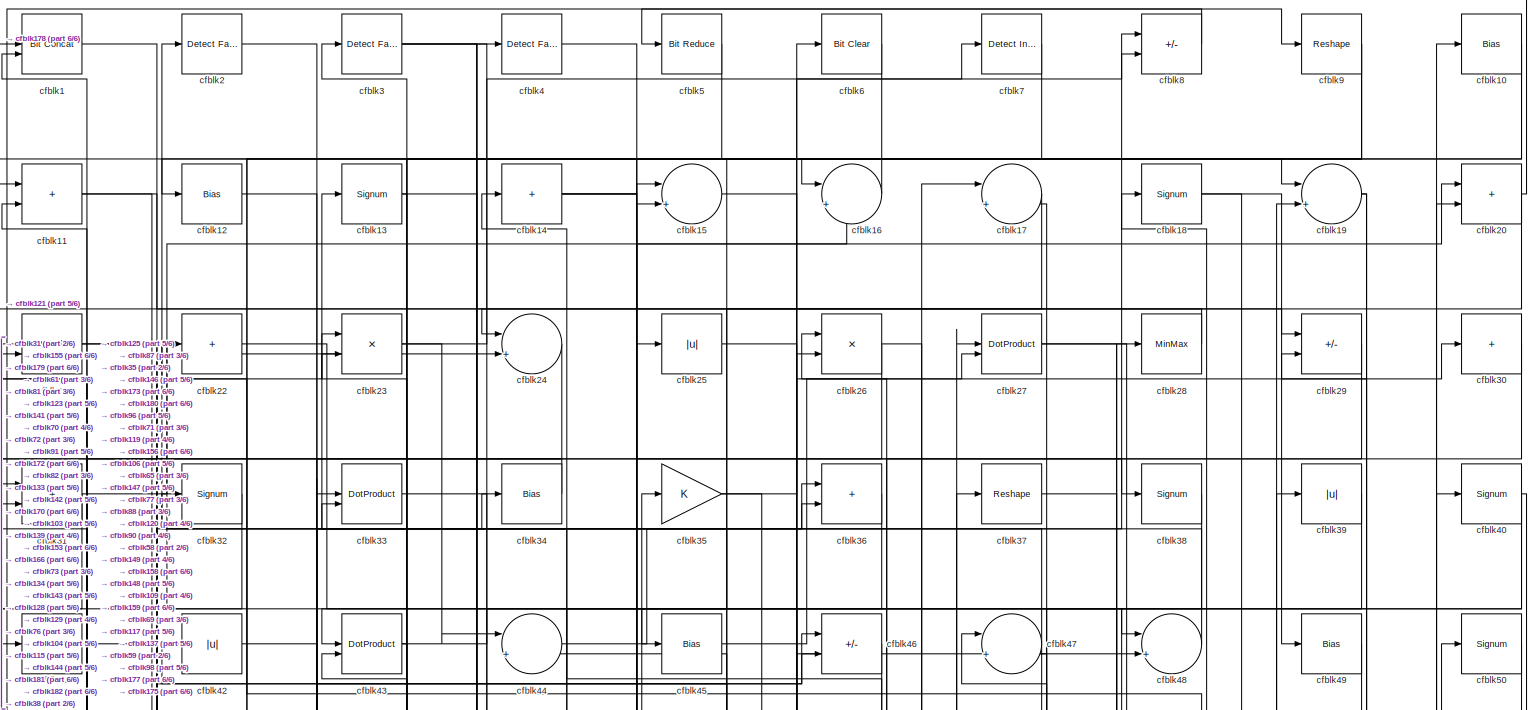
[diagram: root canvas - part 1/6, full width, top band]
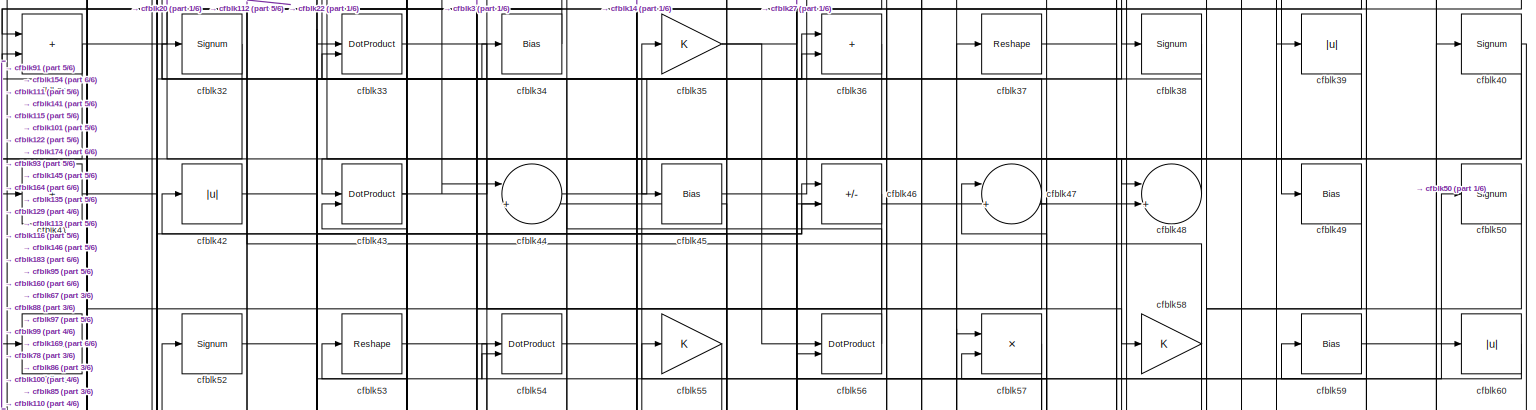
[diagram: root canvas - part 2/6, full width, top band]
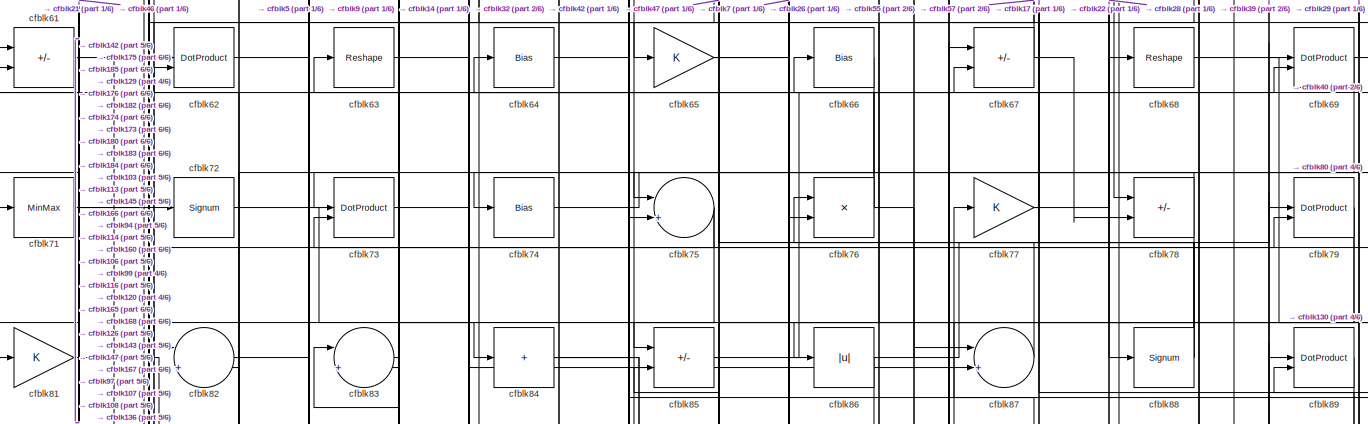
[diagram: root canvas - part 3/6, full width, middle band]
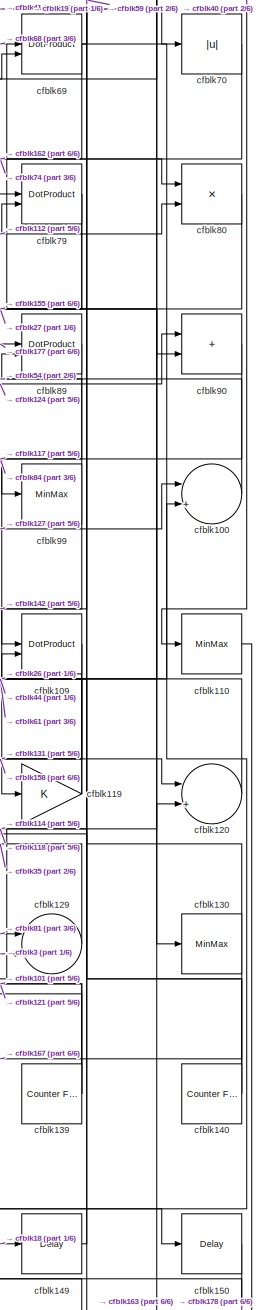
[diagram: root canvas - part 4/6, middle right region]
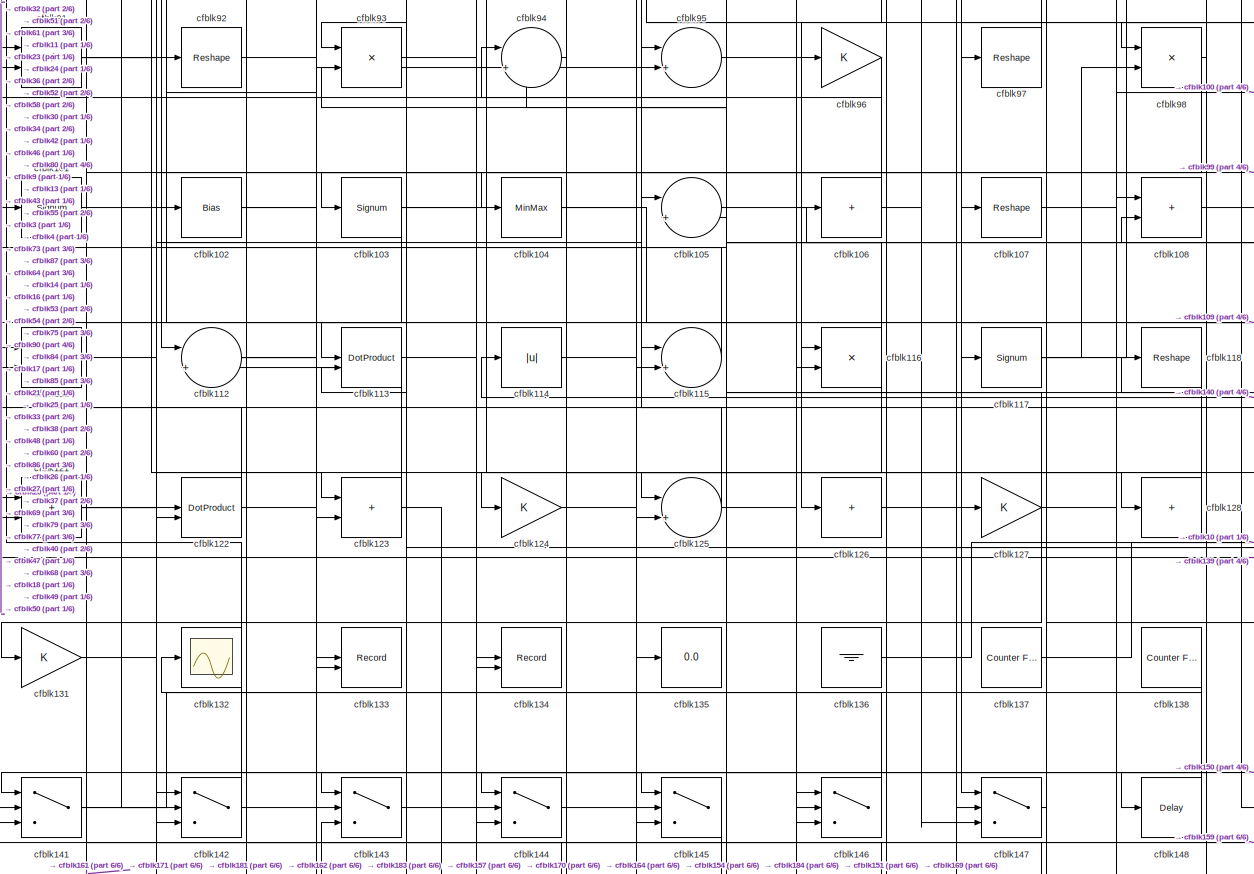
[diagram: root canvas - part 5/6, full width, middle band]
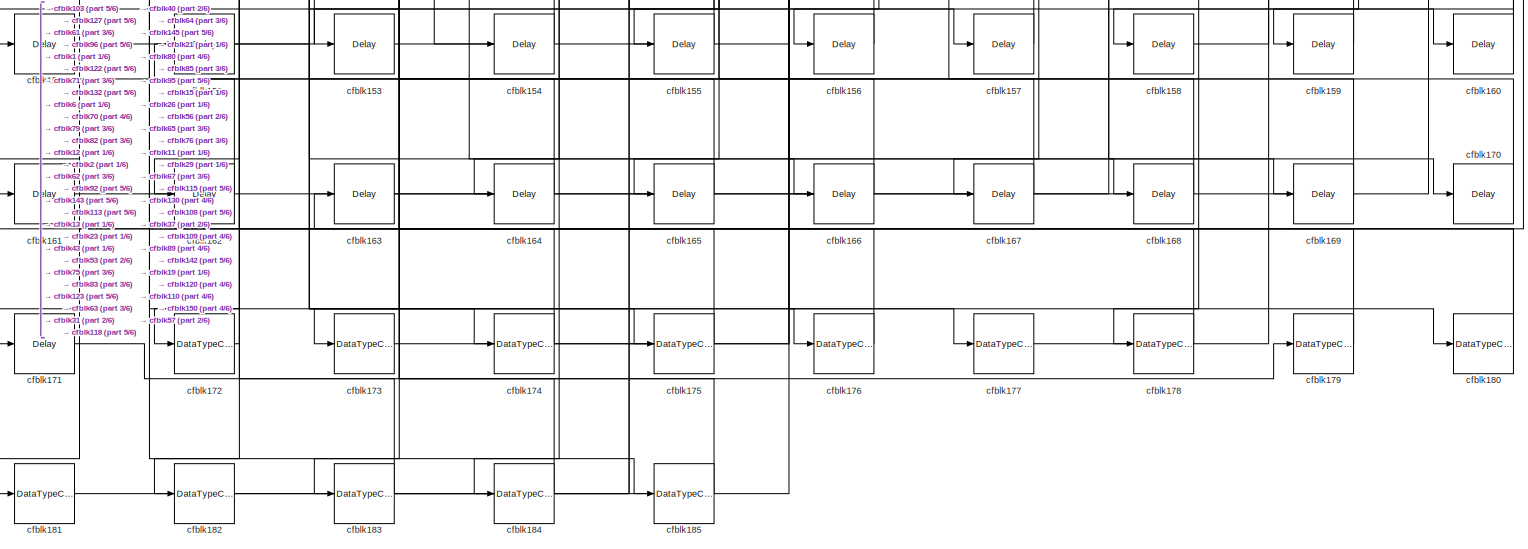
[diagram: root canvas - part 6/6, full width, bottom band]
MODEL slx_259ef8273e37
KIND model
CONFIG AbsTol = auto
CONFIG EnableMultiTasking = off
CONFIG FixedStep = auto
CONFIG MaxStep = auto
CONFIG MinStep = auto
CONFIG RelTol = 1e-3
CONFIG SampleTimeConstraint = Unconstrained
CONFIG SolverName = VariableStepAuto
CONFIG StartTime = 0.0
CONFIG StopTime = 10.0
BLOCK [Reference] cfblk1  REF=hdlsllib/Logic and Bit
Operations/Bit Concat
  SourceBlock = hdlsllib/Logic and Bit\nOperations/Bit Concat
  SourceType = Bit Concat
BLOCK [Bias] cfblk10
  Bias = 0.0
  SaturateOnIntegerOverflow = off
BLOCK [Sum] cfblk100
  Inputs = |++
BLOCK [Signum] cfblk101
BLOCK [Bias] cfblk102
  Bias = 0.0
  SaturateOnIntegerOverflow = off
BLOCK [Signum] cfblk103
BLOCK [MinMax] cfblk104
BLOCK [Sum] cfblk105
  Inputs = |++
BLOCK [Sum] cfblk106
  IconShape = rectangular
  Inputs = +
BLOCK [Reshape] cfblk107
BLOCK [Sum] cfblk108
  IconShape = rectangular
BLOCK [DotProduct] cfblk109
  OutDataTypeStr = Inherit: Inherit via internal rule
BLOCK [Sum] cfblk11
  IconShape = rectangular
BLOCK [MinMax] cfblk110
BLOCK [Product] cfblk111
  Inputs = */
  RndMeth = Zero
  SaturateOnIntegerOverflow = on
BLOCK [Sum] cfblk112
  Inputs = |++
BLOCK [DotProduct] cfblk113
  OutDataTypeStr = Inherit: Inherit via internal rule
BLOCK [Abs] cfblk114
  SaturateOnIntegerOverflow = off
BLOCK [Sum] cfblk115
  Inputs = |++
BLOCK [Product] cfblk116
  Inputs = */
  RndMeth = Zero
  SaturateOnIntegerOverflow = on
BLOCK [Signum] cfblk117
BLOCK [Reshape] cfblk118
BLOCK [Gain] cfblk119
BLOCK [Bias] cfblk12
  Bias = 0.0
  SaturateOnIntegerOverflow = off
BLOCK [Sum] cfblk120
  Inputs = |++
BLOCK [Sum] cfblk121
  IconShape = rectangular
BLOCK [DotProduct] cfblk122
  OutDataTypeStr = Inherit: Inherit via internal rule
BLOCK [Sum] cfblk123
  IconShape = rectangular
BLOCK [Gain] cfblk124
BLOCK [Sum] cfblk125
  Inputs = |++
BLOCK [Sum] cfblk126
  IconShape = rectangular
  Inputs = +
BLOCK [Gain] cfblk127
BLOCK [Sum] cfblk128
  IconShape = rectangular
  Inputs = +
BLOCK [Sum] cfblk129
  Inputs = |++
BLOCK [Signum] cfblk13
BLOCK [MinMax] cfblk130
BLOCK [Gain] cfblk131
BLOCK [Scope] cfblk132
  Floating = off
  NumInputPorts = 1
  ScopeSpecificationString = Simulink.scopes.TimeScopeBlockCfg('CurrentConfiguration', extmgr.ConfigurationSet(extmgr.Configuration('Core','General UI',true),extmgr.Configuration('Core','Source UI',true),extmgr.Configuration('Sources','WiredSimulink',true,'DataLoggingVariableName','ScopeData2','DataLoggingSaveFormat','Array','DataLoggingLimitDataPoints',true,'DataLoggingDecimation','1'),extmgr.Configuration('Visuals','Time Do...<+868ch>
BLOCK [Record] cfblk133
  CompatibilityTag = XY
  FileSettingsInternal = {"entries":[{"content":{"excelSettings":{"content":{},"type":"Streamout.ExcelSettings"}},"type":"Streamout.FileSettingStorage","uuid":""}],"packageUris":["http:\/\/schema.mathworks.com\/mf0\/streamout_blocks\/R2020a"],"version":"1.0"}
  Layout = [1 1]
  SignalsInternal = {"entries":[{"content":{"signals":[{"content":{"blockPath":[],"dimensions":[1],"domain":"","lineColor":"#a2142f","plots":[1],"port":1,"signalID":1850,"signalName":"XY Graph:1"},"type":"RecordBlkView.Signal","uuid":""},{"content":{"blockPath":[],"dimensions":[1],"domain":"","lineColor":"#139fff","plots":[1],"port":2,"signalID":1853,"signalName":"XY Graph:2"},"type":"RecordBlkView.Signal","uuid":""}...<+146ch>
  VisualizationBindings = {"xyplotplugin":{"info":[{"series":[{"bindingParametersList":[{"parameter":"X-Axis","signalID":1850,"signalName":"XY Graph:1"},{"parameter":"Y-Axis","signalID":1853,"signalName":"XY Graph:2"}],"seriesID":15361}],"subplotID":1}]}}
  st = -1
BLOCK [Record] cfblk134
  CompatibilityTag = XY
  FileSettingsInternal = {"entries":[{"content":{"excelSettings":{"content":{},"type":"Streamout.ExcelSettings"}},"type":"Streamout.FileSettingStorage","uuid":""}],"packageUris":["http:\/\/schema.mathworks.com\/mf0\/streamout_blocks\/R2020a"],"version":"1.0"}
  Layout = [1 1]
  SignalsInternal = {"entries":[{"content":{"signals":[{"content":{"blockPath":[],"dimensions":[1],"domain":"","lineColor":"#a2142f","plots":[1],"port":1,"signalID":1858,"signalName":"XY Graph:1"},"type":"RecordBlkView.Signal","uuid":""},{"content":{"blockPath":[],"dimensions":[1],"domain":"","lineColor":"#139fff","plots":[1],"port":2,"signalID":1861,"signalName":"XY Graph:2"},"type":"RecordBlkView.Signal","uuid":""}...<+146ch>
  VisualizationBindings = {"xyplotplugin":{"info":[{"series":[{"bindingParametersList":[{"parameter":"X-Axis","signalID":1858,"signalName":"XY Graph:1"},{"parameter":"Y-Axis","signalID":1861,"signalName":"XY Graph:2"}],"seriesID":19335}],"subplotID":1}]}}
  st = -1
BLOCK [Display] cfblk135
  Decimation = 1
BLOCK [Ground] cfblk136
BLOCK [Reference] cfblk137  REF=hdlsllib/Sources/Counter
Free-Running
  SourceBlock = hdlsllib/Sources/Counter\nFree-Running
  SourceType = Counter Free-Running
BLOCK [Reference] cfblk138  REF=hdlsllib/Sources/Counter
Free-Running
  SourceBlock = hdlsllib/Sources/Counter\nFree-Running
  SourceType = Counter Free-Running
BLOCK [Reference] cfblk139  REF=hdlsllib/Sources/Counter
Free-Running
  SourceBlock = hdlsllib/Sources/Counter\nFree-Running
  SourceType = Counter Free-Running
BLOCK [Sum] cfblk14
  IconShape = rectangular
  Inputs = +
BLOCK [Reference] cfblk140  REF=hdlsllib/Sources/Counter
Free-Running
  SourceBlock = hdlsllib/Sources/Counter\nFree-Running
  SourceType = Counter Free-Running
BLOCK [Switch] cfblk141
  InputSameDT = off
  SaturateOnIntegerOverflow = off
BLOCK [Switch] cfblk142
  InputSameDT = off
  SaturateOnIntegerOverflow = off
BLOCK [Switch] cfblk143
  InputSameDT = off
  SaturateOnIntegerOverflow = off
BLOCK [Switch] cfblk144
  InputSameDT = off
  SaturateOnIntegerOverflow = off
BLOCK [Switch] cfblk145
  InputSameDT = off
  SaturateOnIntegerOverflow = off
BLOCK [Switch] cfblk146
  InputSameDT = off
  SaturateOnIntegerOverflow = off
BLOCK [Switch] cfblk147
  InputSameDT = off
  SaturateOnIntegerOverflow = off
BLOCK [Delay] cfblk148
  InputPortMap = u0
  SampleTime = 1
BLOCK [Delay] cfblk149
  InputPortMap = u0
  SampleTime = 1
BLOCK [Sum] cfblk15
  Inputs = |++
BLOCK [Delay] cfblk150
  InputPortMap = u0
  SampleTime = 1
BLOCK [Delay] cfblk151
  InputPortMap = u0
  SampleTime = 1
BLOCK [Delay] cfblk152
  InputPortMap = u0
  SampleTime = 1
BLOCK [Delay] cfblk153
  InputPortMap = u0
  SampleTime = 1
BLOCK [Delay] cfblk154
  InputPortMap = u0
  SampleTime = 1
BLOCK [Delay] cfblk155
  InputPortMap = u0
  SampleTime = 1
BLOCK [Delay] cfblk156
  InputPortMap = u0
  SampleTime = 1
BLOCK [Delay] cfblk157
  InputPortMap = u0
  SampleTime = 1
BLOCK [Delay] cfblk158
  InputPortMap = u0
  SampleTime = 1
BLOCK [Delay] cfblk159
  InputPortMap = u0
  SampleTime = 1
BLOCK [Sum] cfblk16
  Inputs = |++
BLOCK [Delay] cfblk160
  InputPortMap = u0
  SampleTime = 1
BLOCK [Delay] cfblk161
  InputPortMap = u0
  SampleTime = 1
BLOCK [Delay] cfblk162
  InputPortMap = u0
  SampleTime = 1
BLOCK [Delay] cfblk163
  InputPortMap = u0
  SampleTime = 1
BLOCK [Delay] cfblk164
  InputPortMap = u0
  SampleTime = 1
BLOCK [Delay] cfblk165
  InputPortMap = u0
  SampleTime = 1
BLOCK [Delay] cfblk166
  InputPortMap = u0
  SampleTime = 1
BLOCK [Delay] cfblk167
  InputPortMap = u0
  SampleTime = 1
BLOCK [Delay] cfblk168
  InputPortMap = u0
  SampleTime = 1
BLOCK [Delay] cfblk169
  InputPortMap = u0
  SampleTime = 1
BLOCK [Sum] cfblk17
  Inputs = |++
BLOCK [Delay] cfblk170
  InputPortMap = u0
  SampleTime = 1
BLOCK [Delay] cfblk171
  InputPortMap = u0
  SampleTime = 1
BLOCK [DataTypeConversion] cfblk172
  OutDataTypeStr = uint8
  RndMeth = Floor
  SaturateOnIntegerOverflow = off
BLOCK [DataTypeConversion] cfblk173
  OutDataTypeStr = uint8
  RndMeth = Floor
  SaturateOnIntegerOverflow = off
BLOCK [DataTypeConversion] cfblk174
  RndMeth = Floor
  SaturateOnIntegerOverflow = off
BLOCK [DataTypeConversion] cfblk175
  OutDataTypeStr = uint8
  RndMeth = Floor
  SaturateOnIntegerOverflow = off
BLOCK [DataTypeConversion] cfblk176
  OutDataTypeStr = uint8
  RndMeth = Floor
  SaturateOnIntegerOverflow = off
BLOCK [DataTypeConversion] cfblk177
  OutDataTypeStr = uint8
  RndMeth = Floor
  SaturateOnIntegerOverflow = off
BLOCK [DataTypeConversion] cfblk178
  OutDataTypeStr = uint8
  RndMeth = Floor
  SaturateOnIntegerOverflow = off
BLOCK [DataTypeConversion] cfblk179
  OutDataTypeStr = uint8
  RndMeth = Floor
  SaturateOnIntegerOverflow = off
BLOCK [Signum] cfblk18
BLOCK [DataTypeConversion] cfblk180
  RndMeth = Floor
  SaturateOnIntegerOverflow = off
BLOCK [DataTypeConversion] cfblk181
  OutDataTypeStr = uint8
  RndMeth = Floor
  SaturateOnIntegerOverflow = off
BLOCK [DataTypeConversion] cfblk182
  OutDataTypeStr = uint8
  RndMeth = Floor
  SaturateOnIntegerOverflow = off
BLOCK [DataTypeConversion] cfblk183
  RndMeth = Floor
  SaturateOnIntegerOverflow = off
BLOCK [DataTypeConversion] cfblk184
  OutDataTypeStr = uint8
  RndMeth = Floor
  SaturateOnIntegerOverflow = off
BLOCK [DataTypeConversion] cfblk185
  OutDataTypeStr = uint8
  RndMeth = Floor
  SaturateOnIntegerOverflow = off
BLOCK [Sum] cfblk19
  Inputs = |++
BLOCK [Reference] cfblk2  REF=hdlsllib/Logic and Bit
Operations/Detect Fall
Nonpositive
  SourceBlock = hdlsllib/Logic and Bit\nOperations/Detect Fall\nNonpositive
  SourceType = Detect Fall Nonpositive
BLOCK [Sum] cfblk20
  IconShape = rectangular
BLOCK [DotProduct] cfblk21
  OutDataTypeStr = Inherit: Inherit via internal rule
BLOCK [Sum] cfblk22
  IconShape = rectangular
  Inputs = +
BLOCK [Product] cfblk23
  Inputs = */
  RndMeth = Zero
  SaturateOnIntegerOverflow = on
BLOCK [Sum] cfblk24
  Inputs = |++
BLOCK [Abs] cfblk25
  SaturateOnIntegerOverflow = off
BLOCK [Product] cfblk26
  Inputs = */
  RndMeth = Zero
  SaturateOnIntegerOverflow = on
BLOCK [DotProduct] cfblk27
  OutDataTypeStr = Inherit: Inherit via internal rule
BLOCK [MinMax] cfblk28
BLOCK [Sum] cfblk29
  IconShape = rectangular
  Inputs = +-
BLOCK [Reference] cfblk3  REF=hdlsllib/Logic and Bit
Operations/Detect Fall
Nonpositive
  SourceBlock = hdlsllib/Logic and Bit\nOperations/Detect Fall\nNonpositive
  SourceType = Detect Fall Nonpositive
BLOCK [Sum] cfblk30
  IconShape = rectangular
  Inputs = +
BLOCK [Sum] cfblk31
  IconShape = rectangular
BLOCK [Signum] cfblk32
BLOCK [DotProduct] cfblk33
  OutDataTypeStr = Inherit: Inherit via internal rule
BLOCK [Bias] cfblk34
  Bias = 0.0
  SaturateOnIntegerOverflow = off
BLOCK [Gain] cfblk35
BLOCK [Sum] cfblk36
  IconShape = rectangular
BLOCK [Reshape] cfblk37
BLOCK [Signum] cfblk38
BLOCK [Abs] cfblk39
  SaturateOnIntegerOverflow = off
BLOCK [Reference] cfblk4  REF=hdlsllib/Logic and Bit
Operations/Detect Fall
Negative
  SourceBlock = hdlsllib/Logic and Bit\nOperations/Detect Fall\nNegative
  SourceType = Detect Fall Negative
BLOCK [Signum] cfblk40
BLOCK [Sum] cfblk41
  IconShape = rectangular
  Inputs = +
BLOCK [Abs] cfblk42
  SaturateOnIntegerOverflow = off
BLOCK [DotProduct] cfblk43
  OutDataTypeStr = Inherit: Inherit via internal rule
BLOCK [Sum] cfblk44
  Inputs = |++
BLOCK [Bias] cfblk45
  Bias = 0.0
  SaturateOnIntegerOverflow = off
BLOCK [Sum] cfblk46
  IconShape = rectangular
  Inputs = +-
BLOCK [Sum] cfblk47
  Inputs = |++
BLOCK [Sum] cfblk48
  Inputs = |++
BLOCK [Bias] cfblk49
  Bias = 0.0
  SaturateOnIntegerOverflow = off
BLOCK [Reference] cfblk5  REF=hdlsllib/Logic and Bit
Operations/Bit Reduce
  SourceBlock = hdlsllib/Logic and Bit\nOperations/Bit Reduce
  SourceType = Bit Reduce
BLOCK [Signum] cfblk50
BLOCK [MinMax] cfblk51
BLOCK [Signum] cfblk52
BLOCK [Reshape] cfblk53
BLOCK [DotProduct] cfblk54
  OutDataTypeStr = Inherit: Inherit via internal rule
BLOCK [Gain] cfblk55
BLOCK [DotProduct] cfblk56
  OutDataTypeStr = Inherit: Inherit via internal rule
BLOCK [Product] cfblk57
  Inputs = */
  RndMeth = Zero
  SaturateOnIntegerOverflow = on
BLOCK [Gain] cfblk58
BLOCK [Bias] cfblk59
  Bias = 0.0
  SaturateOnIntegerOverflow = off
BLOCK [Reference] cfblk6  REF=simulink/Logic and Bit
Operations/Bit Clear
  LibrarySourceBlock = hdlsllib/Logic and Bit\nOperations/Bit Clear
  SourceBlock = simulink/Logic and Bit\nOperations/Bit Clear
  SourceType = Bit Clear
BLOCK [Abs] cfblk60
  SaturateOnIntegerOverflow = off
BLOCK [Sum] cfblk61
  IconShape = rectangular
  Inputs = +-
BLOCK [DotProduct] cfblk62
  OutDataTypeStr = Inherit: Inherit via internal rule
BLOCK [Reshape] cfblk63
BLOCK [Bias] cfblk64
  Bias = 0.0
  SaturateOnIntegerOverflow = off
BLOCK [Gain] cfblk65
BLOCK [Bias] cfblk66
  Bias = 0.0
  SaturateOnIntegerOverflow = off
BLOCK [Sum] cfblk67
  IconShape = rectangular
  Inputs = +-
BLOCK [Reshape] cfblk68
BLOCK [DotProduct] cfblk69
  OutDataTypeStr = Inherit: Inherit via internal rule
BLOCK [Reference] cfblk7  REF=simulink/Logic and Bit
Operations/Detect
Increase
  LibrarySourceBlock = hdlsllib/Logic and Bit\nOperations/Detect\nIncrease
  SourceBlock = simulink/Logic and Bit\nOperations/Detect\nIncrease
  SourceType = Detect Increase
BLOCK [Abs] cfblk70
  SaturateOnIntegerOverflow = off
BLOCK [MinMax] cfblk71
BLOCK [Signum] cfblk72
BLOCK [DotProduct] cfblk73
  OutDataTypeStr = Inherit: Inherit via internal rule
BLOCK [Bias] cfblk74
  Bias = 0.0
  SaturateOnIntegerOverflow = off
BLOCK [Sum] cfblk75
  Inputs = |++
BLOCK [Product] cfblk76
  Inputs = */
  RndMeth = Zero
  SaturateOnIntegerOverflow = on
BLOCK [Gain] cfblk77
BLOCK [Sum] cfblk78
  IconShape = rectangular
  Inputs = +-
BLOCK [DotProduct] cfblk79
  OutDataTypeStr = Inherit: Inherit via internal rule
BLOCK [Sum] cfblk8
  IconShape = rectangular
  Inputs = +-
BLOCK [Product] cfblk80
  Inputs = */
  RndMeth = Zero
  SaturateOnIntegerOverflow = on
BLOCK [Gain] cfblk81
BLOCK [Sum] cfblk82
  Inputs = |++
BLOCK [Sum] cfblk83
  Inputs = |++
BLOCK [Sum] cfblk84
  IconShape = rectangular
  Inputs = +
BLOCK [Sum] cfblk85
  IconShape = rectangular
  Inputs = +-
BLOCK [Abs] cfblk86
  SaturateOnIntegerOverflow = off
BLOCK [Sum] cfblk87
  Inputs = |++
BLOCK [Signum] cfblk88
BLOCK [DotProduct] cfblk89
  OutDataTypeStr = Inherit: Inherit via internal rule
BLOCK [Reshape] cfblk9
BLOCK [Sum] cfblk90
  IconShape = rectangular
BLOCK [Sum] cfblk91
  IconShape = rectangular
  Inputs = +-
BLOCK [Reshape] cfblk92
BLOCK [Product] cfblk93
  Inputs = */
  RndMeth = Zero
  SaturateOnIntegerOverflow = on
BLOCK [Sum] cfblk94
  Inputs = |++
BLOCK [Sum] cfblk95
  Inputs = |++
BLOCK [Gain] cfblk96
BLOCK [Reshape] cfblk97
BLOCK [Product] cfblk98
  Inputs = */
  RndMeth = Zero
  SaturateOnIntegerOverflow = on
BLOCK [MinMax] cfblk99
LINE cfblk100:1 -> cfblk59:1
LINE cfblk101:1 -> cfblk33:1
NET cfblk102:1 -> cfblk104:1, cfblk133:2
NET cfblk103:1 -> cfblk107:1, cfblk181:1, cfblk87:2
NET cfblk104:1 -> cfblk116:1, cfblk16:2
LINE cfblk105:1 -> cfblk108:2
NET cfblk106:1 -> cfblk17:1, cfblk91:2
LINE cfblk107:1 -> cfblk68:1
LINE cfblk108:1 -> cfblk79:1
NET cfblk109:1 -> cfblk131:1, cfblk158:1
NET cfblk10:1 -> cfblk141:3, cfblk16:1
LINE cfblk110:1 -> cfblk163:1
LINE cfblk111:1 -> cfblk36:1
NET cfblk112:1 -> cfblk36:2, cfblk54:2, cfblk80:2
LINE cfblk113:1 -> cfblk69:2
NET cfblk114:1 -> cfblk144:1, cfblk75:2
LINE cfblk115:1 -> cfblk52:1
NET cfblk116:1 -> cfblk144:2, cfblk85:2, cfblk93:2, cfblk94:1
NET cfblk117:1 -> cfblk100:2, cfblk20:2, cfblk98:2
LINE cfblk118:1 -> cfblk184:1
NET cfblk119:1 -> cfblk26:1, cfblk44:2
NET cfblk11:1 -> cfblk123:1, cfblk29:1
LINE cfblk120:1 -> cfblk61:1
NET cfblk121:1 -> cfblk105:1, cfblk150:1, cfblk23:1
NET cfblk122:1 -> cfblk111:2, cfblk34:1
NET cfblk123:1 -> cfblk112:2, cfblk154:1
LINE cfblk124:1 -> cfblk90:1
NET cfblk125:1 -> cfblk11:2, cfblk48:2
LINE cfblk126:1 -> cfblk127:1
NET cfblk127:1 -> cfblk100:1, cfblk105:2, cfblk171:1
LINE cfblk128:1 -> cfblk94:2
LINE cfblk129:1 -> cfblk35:1
LINE cfblk12:1 -> cfblk170:1
NET cfblk130:1 -> cfblk109:2, cfblk167:1
LINE cfblk131:1 -> cfblk92:1
LINE cfblk136:1 -> cfblk69:1
LINE cfblk137:1 -> cfblk10:1
LINE cfblk138:1 -> cfblk141:1
NET cfblk139:1 -> cfblk101:1, cfblk121:2, cfblk3:1
NET cfblk13:1 -> cfblk134:1, cfblk153:1
NET cfblk140:1 -> cfblk114:1, cfblk118:1
NET cfblk141:1 -> cfblk37:1, cfblk46:2
NET cfblk142:1 -> cfblk46:1, cfblk9:1
LINE cfblk143:1 -> cfblk4:1
LINE cfblk144:1 -> cfblk25:1
LINE cfblk145:1 -> cfblk151:1
LINE cfblk146:1 -> cfblk102:1
LINE cfblk147:1 -> cfblk47:1
LINE cfblk148:1 -> cfblk27:1
LINE cfblk149:1 -> cfblk89:2
NET cfblk14:1 -> cfblk125:2, cfblk19:1, cfblk38:1
LINE cfblk150:1 -> cfblk178:1
LINE cfblk151:1 -> cfblk143:3
LINE cfblk152:1 -> cfblk176:1
LINE cfblk153:1 -> cfblk26:2
LINE cfblk154:1 -> cfblk31:2
LINE cfblk155:1 -> cfblk21:2
LINE cfblk156:1 -> cfblk11:1
LINE cfblk157:1 -> cfblk115:1
LINE cfblk158:1 -> cfblk19:2
LINE cfblk159:1 -> cfblk142:1
LINE cfblk15:1 -> cfblk180:1
LINE cfblk160:1 -> cfblk57:1
LINE cfblk161:1 -> cfblk108:1
LINE cfblk162:1 -> cfblk122:1
LINE cfblk163:1 -> cfblk120:2
LINE cfblk164:1 -> cfblk113:2
LINE cfblk165:1 -> cfblk61:2
LINE cfblk166:1 -> cfblk43:2
LINE cfblk167:1 -> cfblk67:1
LINE cfblk168:1 -> cfblk82:2
LINE cfblk169:1 -> cfblk95:1
LINE cfblk16:1 -> cfblk12:1
LINE cfblk170:1 -> cfblk143:2
LINE cfblk171:1 -> cfblk179:1
LINE cfblk172:1 -> cfblk152:1
LINE cfblk173:1 -> cfblk6:1
NET cfblk174:1 -> cfblk53:1, cfblk76:2
LINE cfblk175:1 -> cfblk62:1
LINE cfblk176:1 -> cfblk62:2
LINE cfblk177:1 -> cfblk89:1
LINE cfblk178:1 -> cfblk1:1
LINE cfblk179:1 -> cfblk1:2
LINE cfblk17:1 -> cfblk125:1
NET cfblk180:1 -> cfblk23:2, cfblk63:1
LINE cfblk181:1 -> cfblk15:1
LINE cfblk182:1 -> cfblk15:2
NET cfblk183:1 -> cfblk132:1, cfblk56:2
LINE cfblk184:1 -> cfblk83:1
LINE cfblk185:1 -> cfblk83:2
NET cfblk18:1 -> cfblk149:1, cfblk49:1
NET cfblk19:1 -> cfblk109:1, cfblk159:1
LINE cfblk1:1 -> cfblk177:1
NET cfblk20:1 -> cfblk121:1, cfblk141:2
NET cfblk21:1 -> cfblk146:3, cfblk72:1
LINE cfblk22:1 -> cfblk88:1
NET cfblk23:1 -> cfblk44:1, cfblk8:1
LINE cfblk24:1 -> cfblk41:1
LINE cfblk25:1 -> cfblk96:1
NET cfblk26:1 -> cfblk147:3, cfblk81:1
NET cfblk27:1 -> cfblk120:1, cfblk90:2
LINE cfblk28:1 -> cfblk24:1
LINE cfblk29:1 -> cfblk156:1
LINE cfblk2:1 -> cfblk175:1
LINE cfblk30:1 -> cfblk123:2
NET cfblk31:1 -> cfblk20:1, cfblk51:1
LINE cfblk32:1 -> cfblk91:1
LINE cfblk33:1 -> cfblk146:1
LINE cfblk34:1 -> cfblk31:1
NET cfblk35:1 -> cfblk27:2, cfblk56:1
LINE cfblk36:1 -> cfblk93:1
LINE cfblk37:1 -> cfblk169:1
LINE cfblk38:1 -> cfblk116:2
LINE cfblk39:1 -> cfblk78:1
NET cfblk3:1 -> cfblk128:1, cfblk129:2, cfblk58:1
NET cfblk40:1 -> cfblk110:1, cfblk164:1, cfblk97:1
LINE cfblk41:1 -> cfblk70:1
LINE cfblk42:1 -> cfblk133:1
NET cfblk43:1 -> cfblk103:1, cfblk48:1
LINE cfblk44:1 -> cfblk8:2
LINE cfblk45:1 -> cfblk30:1
LINE cfblk46:1 -> cfblk71:1
NET cfblk47:1 -> cfblk2:1, cfblk65:1
LINE cfblk48:1 -> cfblk13:1
LINE cfblk49:1 -> cfblk148:1
LINE cfblk4:1 -> cfblk115:2
LINE cfblk50:1 -> cfblk98:1
LINE cfblk51:1 -> cfblk111:1
LINE cfblk52:1 -> cfblk95:2
LINE cfblk53:1 -> cfblk145:2
LINE cfblk54:1 -> cfblk135:1
LINE cfblk55:1 -> cfblk113:1
LINE cfblk56:1 -> cfblk33:2
LINE cfblk57:1 -> cfblk86:1
NET cfblk58:1 -> cfblk112:1, cfblk22:1
LINE cfblk59:1 -> cfblk50:1
LINE cfblk5:1 -> cfblk73:1
LINE cfblk60:1 -> cfblk57:2
NET cfblk61:1 -> cfblk142:2, cfblk21:1
LINE cfblk62:1 -> cfblk174:1
LINE cfblk63:1 -> cfblk166:1
LINE cfblk64:1 -> cfblk160:1
NET cfblk65:1 -> cfblk168:1, cfblk7:1
LINE cfblk66:1 -> cfblk75:1
NET cfblk67:1 -> cfblk55:1, cfblk78:2
LINE cfblk68:1 -> cfblk130:1
NET cfblk69:1 -> cfblk143:1, cfblk147:2, cfblk29:2
LINE cfblk6:1 -> cfblk172:1
LINE cfblk70:1 -> cfblk162:1
NET cfblk71:1 -> cfblk185:1, cfblk79:2
LINE cfblk72:1 -> cfblk84:1
LINE cfblk73:1 -> cfblk145:1
LINE cfblk74:1 -> cfblk80:1
NET cfblk75:1 -> cfblk173:1, cfblk73:2
NET cfblk76:1 -> cfblk14:1, cfblk66:1, cfblk87:1
NET cfblk77:1 -> cfblk17:2, cfblk28:1
NET cfblk78:1 -> cfblk74:1, cfblk85:1
NET cfblk79:1 -> cfblk147:1, cfblk182:1
LINE cfblk7:1 -> cfblk43:1
LINE cfblk80:1 -> cfblk155:1
LINE cfblk81:1 -> cfblk129:1
LINE cfblk82:1 -> cfblk67:2
LINE cfblk83:1 -> cfblk183:1
NET cfblk84:1 -> cfblk106:1, cfblk99:1
NET cfblk85:1 -> cfblk165:1, cfblk40:1
NET cfblk86:1 -> cfblk126:1, cfblk39:1
LINE cfblk87:1 -> cfblk42:1
NET cfblk88:1 -> cfblk32:1, cfblk47:2, cfblk76:1
LINE cfblk89:1 -> cfblk119:1
LINE cfblk8:1 -> cfblk5:1
LINE cfblk90:1 -> cfblk117:1
NET cfblk91:1 -> cfblk124:1, cfblk146:2, cfblk24:2
LINE cfblk92:1 -> cfblk157:1
LINE cfblk93:1 -> cfblk134:2
LINE cfblk94:1 -> cfblk64:1
LINE cfblk95:1 -> cfblk60:1
LINE cfblk96:1 -> cfblk161:1
LINE cfblk97:1 -> cfblk77:1
NET cfblk98:1 -> cfblk122:2, cfblk145:3, cfblk18:1
NET cfblk99:1 -> cfblk142:3, cfblk54:1
NET cfblk9:1 -> cfblk144:3, cfblk45:1, cfblk82:1
note: NET lines group one-source signal fan-out (src -> all destinations, sorted); 1:1 wires keep LINE
